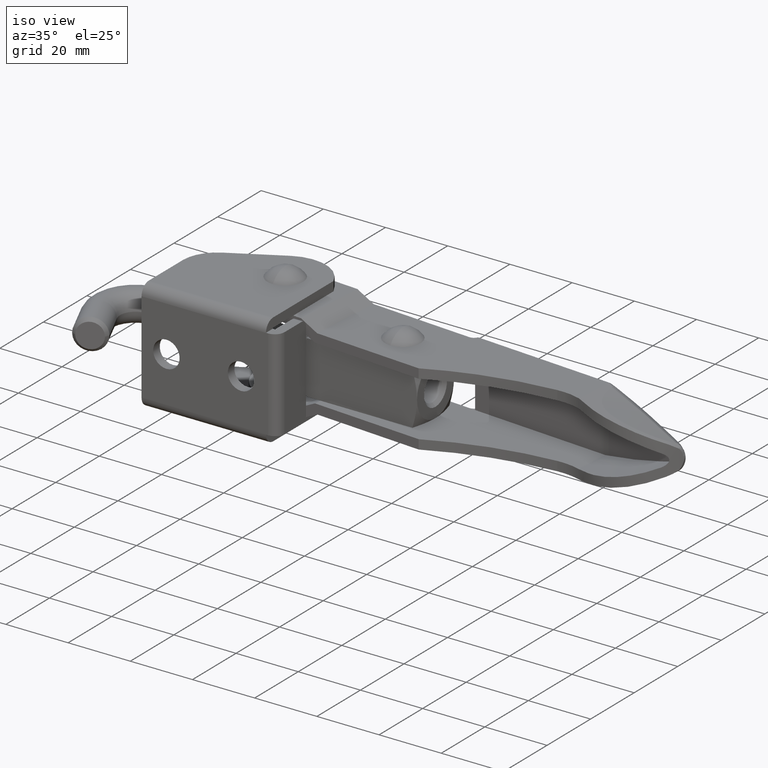
[diagram: clean part render]
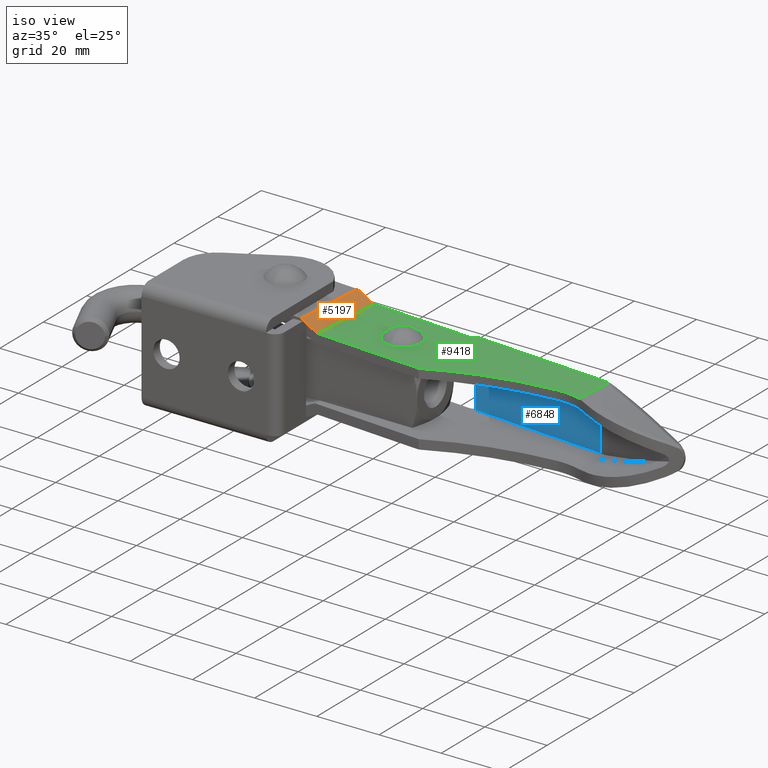
[diagram: same view with three faces highlighted in distinct colors, each labeled with its STEP entity id]
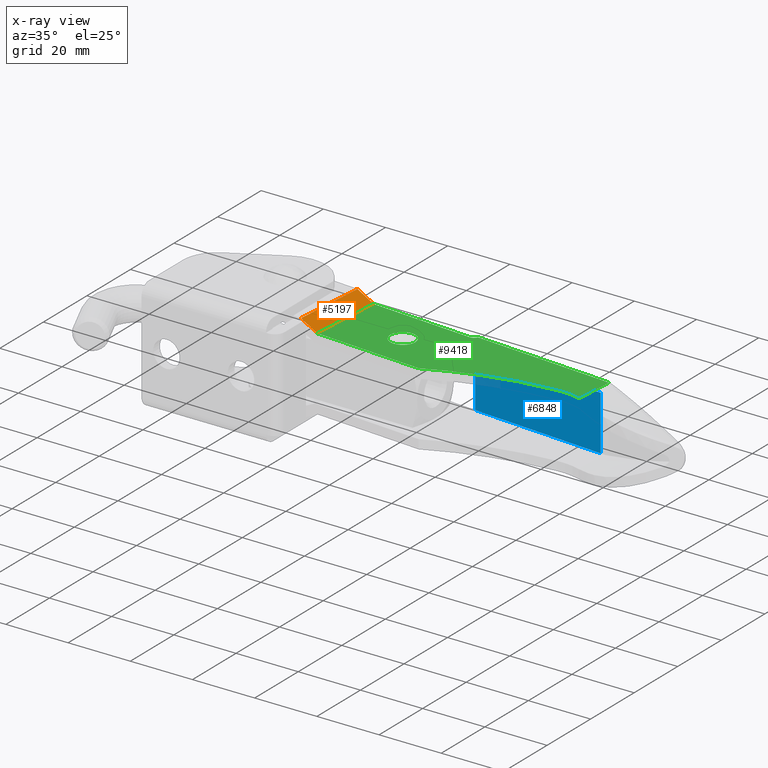
[diagram: x-ray of the same camera — body ghosted, the three highlighted faces saturated]
A machine part, iso view with three faces highlighted in distinct colors.
The next image is the same camera in x-ray (body ghosted, the three faces saturated) — at least one of them is partly hidden behind the body in this view.
Their STEP definitions:

[orange] entity #5197 — the highlighted planar face has unit normal (0.446, -0.0332, 0.8944).
#14 = VECTOR ( 'NONE', #4504, 1000.000000000000100 ) ;
#36 = VECTOR ( 'NONE', #5519, 1000.000000000000100 ) ;
#254 = CARTESIAN_POINT ( 'NONE',  ( 21.63912328155356900, 13.17224342513675400, 14.54999999999999000 ) ) ;
#313 = VERTEX_POINT ( 'NONE', #5110 ) ;
#1336 = EDGE_CURVE ( 'NONE', #5723, #8144, #5745, .T. ) ;
#2553 = PLANE ( 'NONE',  #5781 ) ;
#2703 = ORIENTED_EDGE ( 'NONE', *, *, #1336, .F. ) ;
#2986 = CARTESIAN_POINT ( 'NONE',  ( 27.12394242334361700, 12.76388948813257000, 11.80000027472665100 ) ) ;
#3149 = EDGE_CURVE ( 'NONE', #7753, #313, #3961, .T. ) ;
#3335 = DIRECTION ( 'NONE',  ( 0.8919585214951715200, -0.06640780023570876100, -0.4472135954999600900 ) ) ;
#3961 = LINE ( 'NONE', #2986, #14 ) ;
#4263 = FACE_OUTER_BOUND ( 'NONE', #4916, .T. ) ;
#4504 = DIRECTION ( 'NONE',  ( 0.07424617778163739000, 0.9972399435867064200, 3.469540227303168100E-015 ) ) ;
#4706 = DIRECTION ( 'NONE',  ( -0.8919585214951715200, 0.06640780023570876100, 0.4472135954999600900 ) ) ;
#4748 = ORIENTED_EDGE ( 'NONE', *, *, #8211, .T. ) ;
#4916 = EDGE_LOOP ( 'NONE', ( #5515, #2703, #4748, #5652 ) ) ;
#5110 = CARTESIAN_POINT ( 'NONE',  ( 28.86872760121209700, 36.19902816242019800, 11.80000027472673300 ) ) ;
#5118 = LINE ( 'NONE', #6211, #7554 ) ;
#5197 = ADVANCED_FACE ( 'NONE', ( #4263 ), #2553, .T. ) ;
#5515 = ORIENTED_EDGE ( 'NONE', *, *, #8273, .T. ) ;
#5519 = DIRECTION ( 'NONE',  ( 0.07424617778163739000, 0.9972399435867064200, 3.469540227303168100E-015 ) ) ;
#5572 = CARTESIAN_POINT ( 'NONE',  ( 8.333719463013682800, 14.16285294065088600, 21.22111456180007800 ) ) ;
#5652 = ORIENTED_EDGE ( 'NONE', *, *, #3149, .T. ) ;
#5723 = VERTEX_POINT ( 'NONE', #254 ) ;
#5745 = LINE ( 'NONE', #9092, #36 ) ;
#5781 = AXIS2_PLACEMENT_3D ( 'NONE', #5572, #7766, #3335 ) ;
#6211 = CARTESIAN_POINT ( 'NONE',  ( 4.194788973720581500, 38.03604406385016300, 24.17111456180018800 ) ) ;
#6804 = CARTESIAN_POINT ( 'NONE',  ( 23.38390845942204900, 36.60738209942438500, 14.55000000000007200 ) ) ;
#6874 = CARTESIAN_POINT ( 'NONE',  ( 8.333719463013682800, 14.16285294065088600, 21.22111456180007800 ) ) ;
#7325 = VECTOR ( 'NONE', #7611, 1000.000000000000000 ) ;
#7554 = VECTOR ( 'NONE', #4706, 1000.000000000000100 ) ;
#7611 = DIRECTION ( 'NONE',  ( 0.8919585214951715200, -0.06640780023570867800, -0.4472135954999600900 ) ) ;
#7684 = CARTESIAN_POINT ( 'NONE',  ( 27.12394242334361700, 12.76388948813257000, 11.80000027472665100 ) ) ;
#7753 = VERTEX_POINT ( 'NONE', #7684 ) ;
#7766 = DIRECTION ( 'NONE',  ( 0.4459792607475881500, -0.03320390011785840500, 0.8944271909999148600 ) ) ;
#8144 = VERTEX_POINT ( 'NONE', #6804 ) ;
#8211 = EDGE_CURVE ( 'NONE', #5723, #7753, #9468, .T. ) ;
#8273 = EDGE_CURVE ( 'NONE', #313, #8144, #5118, .T. ) ;
#9092 = CARTESIAN_POINT ( 'NONE',  ( 21.63912328155356900, 13.17224342513675400, 14.54999999999999000 ) ) ;
#9468 = LINE ( 'NONE', #6874, #7325 ) ;

[blue] entity #6848 — the highlighted planar face has unit normal (-0.0742, -0.9972, -0).
#374 = VERTEX_POINT ( 'NONE', #929 ) ;
#567 = LINE ( 'NONE', #4873, #2067 ) ;
#859 = CARTESIAN_POINT ( 'NONE',  ( 63.32058948620307600, 33.63402955915371000, 8.800000000000109100 ) ) ;
#899 = EDGE_CURVE ( 'NONE', #1128, #8127, #2006, .T. ) ;
#929 = CARTESIAN_POINT ( 'NONE',  ( 105.9528231782301300, 30.45998862519138900, -8.799999999999919000 ) ) ;
#1128 = VERTEX_POINT ( 'NONE', #2946 ) ;
#1280 = VECTOR ( 'NONE', #3594, 1000.000000000000100 ) ;
#1798 = DIRECTION ( 'NONE',  ( -0.07424617778163747400, -0.9972399435867065300, -3.469540227303166900E-015 ) ) ;
#1812 = DIRECTION ( 'NONE',  ( -0.9972399435867064200, 0.07424617778163747400, 4.107359338280721200E-016 ) ) ;
#2006 = LINE ( 'NONE', #7243, #7907 ) ;
#2067 = VECTOR ( 'NONE', #7107, 1000.000000000000000 ) ;
#2506 = CARTESIAN_POINT ( 'NONE',  ( -0.5027669033461363800, 38.38578493717849200, 14.75000000000014200 ) ) ;
#2749 = LINE ( 'NONE', #4097, #8188 ) ;
#2946 = CARTESIAN_POINT ( 'NONE',  ( 105.9528231782301300, 30.45998862519132500, 8.800000000000094900 ) ) ;
#3172 = ORIENTED_EDGE ( 'NONE', *, *, #4524, .F. ) ;
#3594 = DIRECTION ( 'NONE',  ( 0.9972399435867064200, -0.07424617778163747400, -6.303211839517184800E-016 ) ) ;
#4097 = CARTESIAN_POINT ( 'NONE',  ( 105.9528231782301300, 30.45998862519130400, 14.75000000000009900 ) ) ;
#4243 = VERTEX_POINT ( 'NONE', #7720 ) ;
#4411 = ORIENTED_EDGE ( 'NONE', *, *, #9474, .T. ) ;
#4524 = EDGE_CURVE ( 'NONE', #1128, #374, #2749, .T. ) ;
#4581 = EDGE_CURVE ( 'NONE', #8127, #4243, #567, .T. ) ;
#4873 = CARTESIAN_POINT ( 'NONE',  ( 63.32058948620307600, 33.63402955915368900, 14.75000000000011500 ) ) ;
#5156 = FACE_OUTER_BOUND ( 'NONE', #5458, .T. ) ;
#5454 = ORIENTED_EDGE ( 'NONE', *, *, #899, .T. ) ;
#5458 = EDGE_LOOP ( 'NONE', ( #7505, #4411, #3172, #5454 ) ) ;
#6270 = PLANE ( 'NONE',  #7136 ) ;
#6353 = DIRECTION ( 'NONE',  ( -1.301042606982682200E-016, 3.488829337160034500E-015, -1.000000000000000000 ) ) ;
#6848 = ADVANCED_FACE ( 'NONE', ( #5156 ), #6270, .T. ) ;
#7001 = DIRECTION ( 'NONE',  ( -1.301042606982682200E-016, 3.488829337160034100E-015, -1.000000000000000000 ) ) ;
#7107 = DIRECTION ( 'NONE',  ( -1.301042606982682200E-016, 3.488829337160034500E-015, -1.000000000000000000 ) ) ;
#7136 = AXIS2_PLACEMENT_3D ( 'NONE', #2506, #1798, #7001 ) ;
#7243 = CARTESIAN_POINT ( 'NONE',  ( -0.5027669033461372700, 38.38578493717851400, 8.800000000000137500 ) ) ;
#7291 = CARTESIAN_POINT ( 'NONE',  ( -0.5027669033461451600, 38.38578493717857800, -8.799999999999853300 ) ) ;
#7505 = ORIENTED_EDGE ( 'NONE', *, *, #4581, .T. ) ;
#7720 = CARTESIAN_POINT ( 'NONE',  ( 63.32058948620307600, 33.63402955915377400, -8.799999999999894100 ) ) ;
#7907 = VECTOR ( 'NONE', #1812, 1000.000000000000100 ) ;
#8127 = VERTEX_POINT ( 'NONE', #859 ) ;
#8188 = VECTOR ( 'NONE', #6353, 1000.000000000000000 ) ;
#8904 = LINE ( 'NONE', #7291, #1280 ) ;
#9474 = EDGE_CURVE ( 'NONE', #4243, #374, #8904, .T. ) ;

[green] entity #9418 — the highlighted planar face has unit normal (0, -0, 1).
#14 = VECTOR ( 'NONE', #4504, 1000.000000000000100 ) ;
#308 = ORIENTED_EDGE ( 'NONE', *, *, #7772, .F. ) ;
#313 = VERTEX_POINT ( 'NONE', #5110 ) ;
#424 = VERTEX_POINT ( 'NONE', #8352 ) ;
#440 =( BOUNDED_CURVE ( )  B_SPLINE_CURVE ( 3, ( #4347, #8767, #668, #5876 ),
 .UNSPECIFIED., .F., .T. ) 
 B_SPLINE_CURVE_WITH_KNOTS ( ( 4, 4 ),
 ( 1.714467393916615500, 2.087355313919395900 ),
 .UNSPECIFIED. ) 
 CURVE ( )  GEOMETRIC_REPRESENTATION_ITEM ( )  RATIONAL_B_SPLINE_CURVE ( ( 1.000000000000000000, 0.9884464097098614200, 0.9884464097098614200, 1.000000000000000000 ) ) 
 REPRESENTATION_ITEM ( '' )  );
#601 = CARTESIAN_POINT ( 'NONE',  ( 99.23595731607187500, 20.04814350537290900, 11.79958497389181100 ) ) ;
#643 = CARTESIAN_POINT ( 'NONE',  ( 62.91442203473704400, 34.14770195488674200, 11.79980182993823800 ) ) ;
#668 = CARTESIAN_POINT ( 'NONE',  ( 73.44013823133234100, 15.81695316326321100, 11.79973283253793800 ) ) ;
#1025 =( BOUNDED_CURVE ( )  B_SPLINE_CURVE ( 3, ( #4241, #8416, #1304, #601 ),
 .UNSPECIFIED., .F., .T. ) 
 B_SPLINE_CURVE_WITH_KNOTS ( ( 4, 4 ),
 ( 1.328360306923254600, 1.714467393916616200 ),
 .UNSPECIFIED. ) 
 CURVE ( )  GEOMETRIC_REPRESENTATION_ITEM ( )  RATIONAL_B_SPLINE_CURVE ( ( 1.000000000000000000, 0.9876153126666210600, 0.9876153126666210600, 1.000000000000000000 ) ) 
 REPRESENTATION_ITEM ( '' )  );
#1028 = AXIS2_PLACEMENT_3D ( 'NONE', #7164, #6450, #1998 ) ;
#1037 = EDGE_LOOP ( 'NONE', ( #2870, #4285, #1453, #6405, #2115, #2394, #3854, #5761, #2059 ) ) ;
#1077 = DIRECTION ( 'NONE',  ( 0.9972399435698239300, -0.07424617778038046500, -5.818807667272608300E-006 ) ) ;
#1166 = CARTESIAN_POINT ( 'NONE',  ( 66.38662770091167400, 34.68689365991729500, 11.79978191454961900 ) ) ;
#1304 = CARTESIAN_POINT ( 'NONE',  ( 101.8198964765148400, 20.22764440871359800, 11.79957005749421700 ) ) ;
#1428 = EDGE_CURVE ( 'NONE', #3659, #3302, #3517, .T. ) ;
#1453 = ORIENTED_EDGE ( 'NONE', *, *, #1652, .F. ) ;
#1478 = CARTESIAN_POINT ( 'NONE',  ( 61.32610959902966400, 33.78252191471698000, 11.79981088874751700 ) ) ;
#1652 = EDGE_CURVE ( 'NONE', #4397, #3302, #3155, .T. ) ;
#1725 = B_SPLINE_CURVE_WITH_KNOTS ( 'NONE', 3,
 ( #1879, #9272, #1166, #6374, #1906, #7108, #2653, #7825, #3410, #8553 ),
 .UNSPECIFIED., .F., .F.,
 ( 4, 3, 3, 4 ),
 ( 0.001328330645597561700, 0.006000000000000007900, 0.03000000000000000600, 0.04421359897549727300 ),
 .UNSPECIFIED. ) ;
#1760 = CARTESIAN_POINT ( 'NONE',  ( 99.23595731607187500, 20.04814350537290900, 11.79958497389181100 ) ) ;
#1782 = CARTESIAN_POINT ( 'NONE',  ( 43.48959774346825900, 23.03015288873440300, 11.79990974423687100 ) ) ;
#1810 = VERTEX_POINT ( 'NONE', #7460 ) ;
#1826 = EDGE_CURVE ( 'NONE', #424, #2742, #9417, .T. ) ;
#1879 = CARTESIAN_POINT ( 'NONE',  ( 63.28077401637646900, 34.91808243243091400, 11.79980003691325400 ) ) ;
#1906 = CARTESIAN_POINT ( 'NONE',  ( 75.91748307026401200, 33.97745045909499600, 11.79972630290646800 ) ) ;
#1998 = DIRECTION ( 'NONE',  ( 0.9972399435698239300, -0.07424617778038054800, -5.818807667272607400E-006 ) ) ;
#2038 =( BOUNDED_CURVE ( )  B_SPLINE_CURVE ( 3, ( #2784, #5049, #8049, #3650 ),
 .UNSPECIFIED., .F., .T. ) 
 B_SPLINE_CURVE_WITH_KNOTS ( ( 4, 4 ),
 ( 3.215907214753905400, 6.357499868343699000 ),
 .UNSPECIFIED. ) 
 CURVE ( )  GEOMETRIC_REPRESENTATION_ITEM ( )  RATIONAL_B_SPLINE_CURVE ( ( 1.000000000000000000, 0.3333333333333332000, 0.3333333333333332000, 1.000000000000000000 ) ) 
 REPRESENTATION_ITEM ( '' )  );
#2059 = ORIENTED_EDGE ( 'NONE', *, *, #4773, .F. ) ;
#2111 = CARTESIAN_POINT ( 'NONE',  ( 106.8515844468899200, 19.10127874453171900, 11.79954037326255400 ) ) ;
#2115 = ORIENTED_EDGE ( 'NONE', *, *, #1826, .T. ) ;
#2168 = ORIENTED_EDGE ( 'NONE', *, *, #7067, .F. ) ;
#2198 = CARTESIAN_POINT ( 'NONE',  ( 63.28077401637646900, 34.91808243243091400, 11.79980003691325400 ) ) ;
#2207 = EDGE_CURVE ( 'NONE', #3659, #5779, #1025, .T. ) ;
#2394 = ORIENTED_EDGE ( 'NONE', *, *, #2461, .T. ) ;
#2432 = CARTESIAN_POINT ( 'NONE',  ( -2.247483607798885800, 14.95064116493081500, 11.80017165442327500 ) ) ;
#2461 = EDGE_CURVE ( 'NONE', #2742, #313, #9129, .T. ) ;
#2653 = CARTESIAN_POINT ( 'NONE',  ( 91.87334011942665800, 32.78975276270134700, 11.79963320198380000 ) ) ;
#2742 = VERTEX_POINT ( 'NONE', #6060 ) ;
#2784 = CARTESIAN_POINT ( 'NONE',  ( 51.48959774346826600, 23.03015288873443100, 11.79986332225743000 ) ) ;
#2870 = ORIENTED_EDGE ( 'NONE', *, *, #2207, .F. ) ;
#2871 = EDGE_CURVE ( 'NONE', #424, #4397, #1725, .T. ) ;
#2986 = CARTESIAN_POINT ( 'NONE',  ( 27.12394242334361700, 12.76388948813257000, 11.80000027472665100 ) ) ;
#3135 = CARTESIAN_POINT ( 'NONE',  ( 61.57580430833454000, 10.19889088486608100, 11.79979925113209700 ) ) ;
#3149 = EDGE_CURVE ( 'NONE', #7753, #313, #3961, .T. ) ;
#3155 = B_SPLINE_CURVE_WITH_KNOTS ( 'NONE', 3,
 ( #6742, #8714, #4287, #5131 ),
 .UNSPECIFIED., .F., .F.,
 ( 4, 4 ),
 ( 0.0001999136355129768500, 0.001941555551721813200 ),
 .UNSPECIFIED. ) ;
#3241 = CARTESIAN_POINT ( 'NONE',  ( 105.9428579771026900, 6.895689708937249300, 11.79954037326251100 ) ) ;
#3274 = CARTESIAN_POINT ( 'NONE',  ( 51.48959774346826600, 23.03015288873443100, 11.79986332225743000 ) ) ;
#3302 = VERTEX_POINT ( 'NONE', #6902 ) ;
#3324 = CARTESIAN_POINT ( 'NONE',  ( -0.5027840204549838300, 38.38578621157581900, 11.80017165492277300 ) ) ;
#3410 = CARTESIAN_POINT ( 'NONE',  ( 101.3229298430902900, 32.08635862571323800, 11.79957806451800700 ) ) ;
#3487 = VECTOR ( 'NONE', #8485, 1000.000000000000100 ) ;
#3517 = LINE ( 'NONE', #3241, #5023 ) ;
#3650 = CARTESIAN_POINT ( 'NONE',  ( 43.48959774346825900, 23.03015288873440300, 11.79990974423687100 ) ) ;
#3659 = VERTEX_POINT ( 'NONE', #2111 ) ;
#3854 = ORIENTED_EDGE ( 'NONE', *, *, #3149, .F. ) ;
#3939 = FACE_OUTER_BOUND ( 'NONE', #1037, .T. ) ;
#3961 = LINE ( 'NONE', #2986, #14 ) ;
#4241 = CARTESIAN_POINT ( 'NONE',  ( 106.8515844468899200, 19.10127874453171900, 11.79954037326255400 ) ) ;
#4285 = ORIENTED_EDGE ( 'NONE', *, *, #1428, .T. ) ;
#4287 = CARTESIAN_POINT ( 'NONE',  ( 107.2035416515528000, 31.62058438786285200, 11.79954373958719300 ) ) ;
#4347 = CARTESIAN_POINT ( 'NONE',  ( 99.23595731607187500, 20.04814350537290900, 11.79958497389181100 ) ) ;
#4397 = VERTEX_POINT ( 'NONE', #5831 ) ;
#4504 = DIRECTION ( 'NONE',  ( 0.07424617778163739000, 0.9972399435867064200, 3.469540227303168100E-015 ) ) ;
#4773 = EDGE_CURVE ( 'NONE', #5779, #9187, #440, .T. ) ;
#5023 = VECTOR ( 'NONE', #5406, 1000.000000000000100 ) ;
#5049 = CARTESIAN_POINT ( 'NONE',  ( 51.48959774346823800, 31.03015288873443100, 11.79986677845128700 ) ) ;
#5106 = LINE ( 'NONE', #2432, #6857 ) ;
#5110 = CARTESIAN_POINT ( 'NONE',  ( 28.86872760121209700, 36.19902816242019800, 11.80000027472673300 ) ) ;
#5131 = CARTESIAN_POINT ( 'NONE',  ( 107.7763177998872200, 31.52186475083055900, 11.79954037326259600 ) ) ;
#5325 =( BOUNDED_CURVE ( )  B_SPLINE_CURVE ( 3, ( #1782, #6252, #7713, #3274 ),
 .UNSPECIFIED., .F., .T. ) 
 B_SPLINE_CURVE_WITH_KNOTS ( ( 4, 4 ),
 ( 0.07431456116411240500, 3.215907214753905400 ),
 .UNSPECIFIED. ) 
 CURVE ( )  GEOMETRIC_REPRESENTATION_ITEM ( )  RATIONAL_B_SPLINE_CURVE ( ( 1.000000000000000000, 0.3333333333333333700, 0.3333333333333333700, 1.000000000000000000 ) ) 
 REPRESENTATION_ITEM ( '' )  );
#5406 = DIRECTION ( 'NONE',  ( 0.07424617778163739000, 0.9972399435867064200, 3.469540227303168100E-015 ) ) ;
#5707 = FACE_BOUND ( 'NONE', #6179, .T. ) ;
#5761 = ORIENTED_EDGE ( 'NONE', *, *, #8685, .T. ) ;
#5779 = VERTEX_POINT ( 'NONE', #1760 ) ;
#5831 = CARTESIAN_POINT ( 'NONE',  ( 106.0477247040104800, 31.73466154497181400, 11.79955049578511100 ) ) ;
#5876 = CARTESIAN_POINT ( 'NONE',  ( 61.57580430833454000, 10.19889088486608100, 11.79979925113209700 ) ) ;
#6060 = CARTESIAN_POINT ( 'NONE',  ( 61.32610959902966400, 33.78252191471698000, 11.79981088874751700 ) ) ;
#6179 = EDGE_LOOP ( 'NONE', ( #2168, #308 ) ) ;
#6252 = CARTESIAN_POINT ( 'NONE',  ( 43.48959774346828800, 15.03015288873440400, 11.79990628804301300 ) ) ;
#6374 = CARTESIAN_POINT ( 'NONE',  ( 67.93955454308066100, 34.57129927233547300, 11.79977285336780000 ) ) ;
#6405 = ORIENTED_EDGE ( 'NONE', *, *, #2871, .F. ) ;
#6450 = DIRECTION ( 'NONE',  ( 5.802747429595229900E-006, -4.320242320014408800E-007, 0.9999999999830707600 ) ) ;
#6704 = VERTEX_POINT ( 'NONE', #7608 ) ;
#6742 = CARTESIAN_POINT ( 'NONE',  ( 106.0477247040104800, 31.73466154497181400, 11.79955049578511100 ) ) ;
#6857 = VECTOR ( 'NONE', #1077, 1000.000000000000000 ) ;
#6902 = CARTESIAN_POINT ( 'NONE',  ( 107.7763177998872200, 31.52186475083055900, 11.79954037326259600 ) ) ;
#7067 = EDGE_CURVE ( 'NONE', #1810, #6704, #2038, .T. ) ;
#7108 = CARTESIAN_POINT ( 'NONE',  ( 83.89541159571209100, 33.38360162254245000, 11.79967975244513300 ) ) ;
#7164 = CARTESIAN_POINT ( 'NONE',  ( -2.247483607798885800, 14.95064116493081500, 11.80017165442327500 ) ) ;
#7460 = CARTESIAN_POINT ( 'NONE',  ( 51.48959774346826600, 23.03015288873443100, 11.79986332225743000 ) ) ;
#7608 = CARTESIAN_POINT ( 'NONE',  ( 43.48959774346825900, 23.03015288873440300, 11.79990974423687100 ) ) ;
#7684 = CARTESIAN_POINT ( 'NONE',  ( 27.12394242334361700, 12.76388948813257000, 11.80000027472665100 ) ) ;
#7713 = CARTESIAN_POINT ( 'NONE',  ( 51.48959774346829500, 15.03015288873443300, 11.79985986606357600 ) ) ;
#7753 = VERTEX_POINT ( 'NONE', #7684 ) ;
#7772 = EDGE_CURVE ( 'NONE', #6704, #1810, #5325, .T. ) ;
#7825 = CARTESIAN_POINT ( 'NONE',  ( 96.59813498156248100, 32.43805569829143600, 11.79960563325090400 ) ) ;
#8049 = CARTESIAN_POINT ( 'NONE',  ( 43.48959774346823100, 31.03015288873441000, 11.79991320043072500 ) ) ;
#8352 = CARTESIAN_POINT ( 'NONE',  ( 63.28077401637646900, 34.91808243243091400, 11.79980003691325400 ) ) ;
#8416 = CARTESIAN_POINT ( 'NONE',  ( 104.3902721525309800, 19.90806492984255300, 11.79955500418729000 ) ) ;
#8485 = DIRECTION ( 'NONE',  ( -0.9972399435698239300, 0.07424617778038054800, 5.818807667272607400E-006 ) ) ;
#8553 = CARTESIAN_POINT ( 'NONE',  ( 106.0477247040104800, 31.73466154497181400, 11.79955049578511100 ) ) ;
#8685 = EDGE_CURVE ( 'NONE', #7753, #9187, #5106, .T. ) ;
#8714 = CARTESIAN_POINT ( 'NONE',  ( 106.6273439624326200, 31.69151672977270500, 11.79954711376134400 ) ) ;
#8767 = CARTESIAN_POINT ( 'NONE',  ( 86.14025450733481600, 19.13841214635494500, 11.79966057192162900 ) ) ;
#9129 = LINE ( 'NONE', #3324, #3487 ) ;
#9187 = VERTEX_POINT ( 'NONE', #3135 ) ;
#9272 = CARTESIAN_POINT ( 'NONE',  ( 64.83370085867696300, 34.80248804661584200, 11.79979097573143500 ) ) ;
#9346 = PLANE ( 'NONE',  #1028 ) ;
#9417 =( BOUNDED_CURVE ( )  B_SPLINE_CURVE ( 3, ( #2198, #643, #9424, #1478 ),
 .UNSPECIFIED., .F., .F. ) 
 B_SPLINE_CURVE_WITH_KNOTS ( ( 4, 4 ),
 ( 3.511172485408132500, 4.712388980384688800 ),
 .UNSPECIFIED. ) 
 CURVE ( )  GEOMETRIC_REPRESENTATION_ITEM ( )  RATIONAL_B_SPLINE_CURVE ( ( 1.000000000000000000, 0.8833280132613292600, 0.8833280132613292600, 1.000000000000000000 ) ) 
 REPRESENTATION_ITEM ( '' )  );
#9418 = ADVANCED_FACE ( 'NONE', ( #5707, #3939 ), #9346, .T. ) ;
#9424 = CARTESIAN_POINT ( 'NONE',  ( 62.17680837820116600, 33.71918597114273600, 11.79980592499470000 ) ) ;